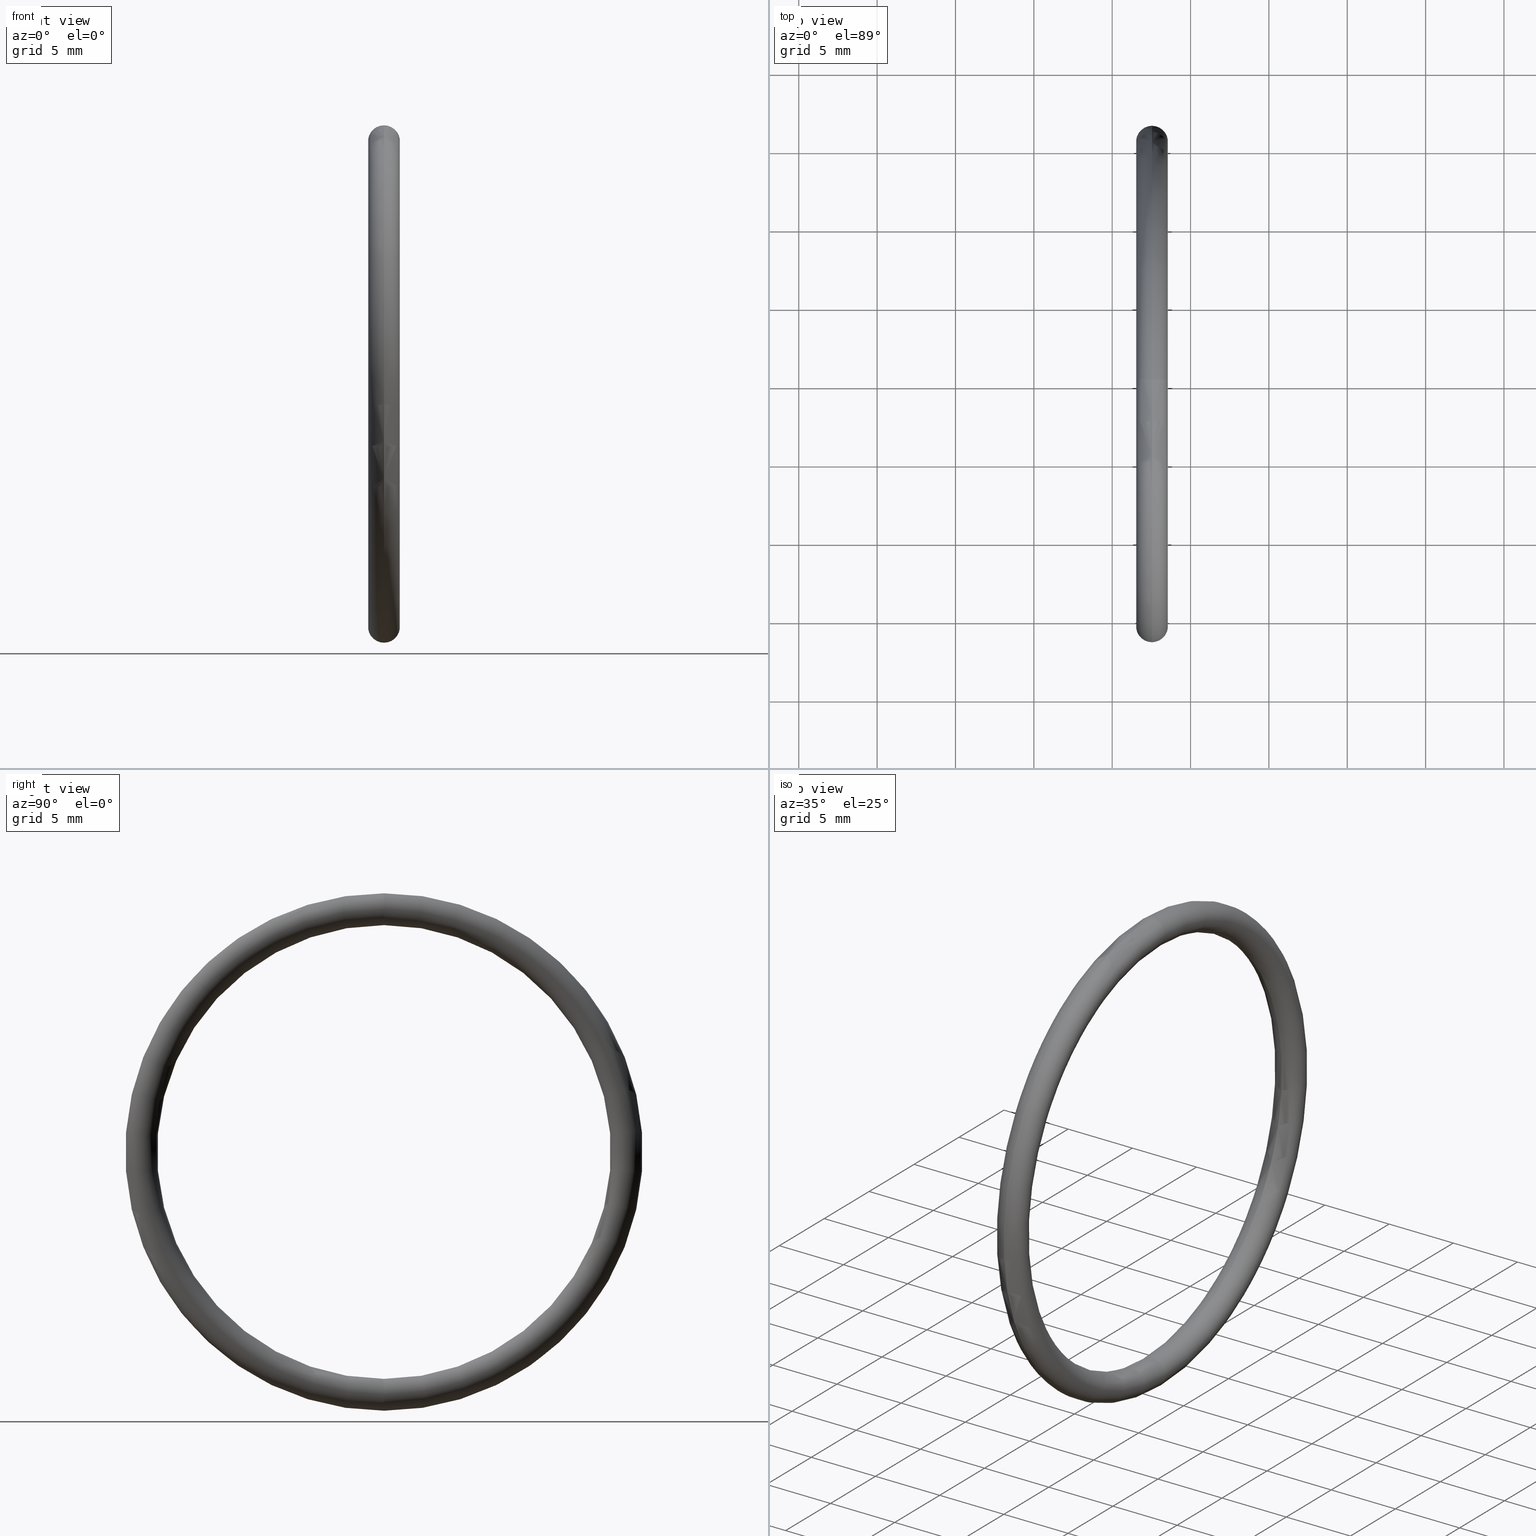
[diagram: canonical four-view strip — front | top / right | iso, engineering-drawing reading convention]
A machine part, canonical four-view strip (front | top / right | iso — engineering-drawing reading convention). The complete STEP part file that produces these views, byte-faithful:
ISO-10303-21;
HEADER;
FILE_DESCRIPTION (( 'STEP AP203' ),
    '1' );
FILE_NAME ('OM-32-BN.STEP',
    '2008-03-29T07:57:19',
    ( 'Baystate-05' ),
    ( 'BayState InfoTech' ),
    'SwSTEP 2.0',
    'SolidWorks 2007',
    '' );
FILE_SCHEMA (( 'CONFIG_CONTROL_DESIGN' ));
ENDSEC;

DATA;
#1 = CC_DESIGN_APPROVAL ( #9, ( #12 ) ) ;
#2 = APPROVAL_DATE_TIME ( #3, #9 ) ;
#3 = DATE_AND_TIME ( #4, #5 ) ;
#4 = CALENDAR_DATE ( 2008, 29, 3 ) ;
#5 = LOCAL_TIME ( 13, 27, 19.00000000000000000, #6 ) ;
#6 = COORDINATED_UNIVERSAL_TIME_OFFSET ( 5, 30, .AHEAD. ) ;
#7 = APPROVAL_PERSON_ORGANIZATION ( #11, #9, #8 ) ;
#8 = APPROVAL_ROLE ( '' ) ;
#9 = APPROVAL ( #10, 'UNSPECIFIED' ) ;
#10 = APPROVAL_STATUS ( 'not_yet_approved' ) ;
#11 = PERSON_AND_ORGANIZATION ( #20, #19 ) ;
#12 = PRODUCT_DEFINITION ( 'UNKNOWN', '', #69, #13 ) ;
#13 = DESIGN_CONTEXT ( 'detailed design', #15, 'design' ) ;
#14 = APPLICATION_PROTOCOL_DEFINITION ( 'international standard', 'config_control_design', 1994, #15 ) ;
#15 = APPLICATION_CONTEXT ( 'configuration controlled 3d designs of mechanical parts and assemblies' ) ;
#16 = CC_DESIGN_PERSON_AND_ORGANIZATION_ASSIGNMENT ( #18, #17, ( #21 ) ) ;
#17 = PERSON_AND_ORGANIZATION_ROLE ( 'design_owner' ) ;
#18 = PERSON_AND_ORGANIZATION ( #20, #19 ) ;
#19 = ORGANIZATION ( 'UNSPECIFIED', 'UNSPECIFIED', '' ) ;
#20 = PERSON ( 'UNSPECIFIED', 'UNSPECIFIED', 'UNSPECIFIED', ('UNSPECIFIED'), ('UNSPECIFIED'), ('UNSPECIFIED') ) ;
#21 = PRODUCT ( 'OM-32-BN', 'OM-32-BN', '', ( #22 ) ) ;
#22 = MECHANICAL_CONTEXT ( 'NONE', #24, 'mechanical' ) ;
#23 = APPLICATION_PROTOCOL_DEFINITION ( 'international standard', 'config_control_design', 1994, #24 ) ;
#24 = APPLICATION_CONTEXT ( 'configuration controlled 3d designs of mechanical parts and assemblies' ) ;
#25 = TOROIDAL_SURFACE ( 'NONE', #86, 0.6099999999999998800, 0.04000000000000000100 ) ;
#26 = DIRECTION ( 'NONE',  ( 1.000000000000000000, 0.0000000000000000000, 0.0000000000000000000 ) ) ;
#27 = CARTESIAN_POINT ( 'NONE',  ( 0.0000000000000000000, 0.0000000000000000000, 0.0000000000000000000 ) ) ;
#28 = AXIS2_PLACEMENT_3D ( 'NONE', #27, #104, #26 ) ;
#29 = SHAPE_DEFINITION_REPRESENTATION ( #79, #30 ) ;
#30 = ADVANCED_BREP_SHAPE_REPRESENTATION ( 'OM-32-BN', ( #149, #28 ), #31 ) ;
#31 =( GEOMETRIC_REPRESENTATION_CONTEXT ( 3 ) GLOBAL_UNCERTAINTY_ASSIGNED_CONTEXT ( ( #32 ) ) GLOBAL_UNIT_ASSIGNED_CONTEXT ( ( #100, #99, #33 ) ) REPRESENTATION_CONTEXT ( 'NONE', 'WORKASPACE' ) );
#32 = UNCERTAINTY_MEASURE_WITH_UNIT (LENGTH_MEASURE( 1.000000000000000100E-005 ), #100, 'distance_accuracy_value', 'NONE');
#33 =( NAMED_UNIT ( * ) SI_UNIT ( $, .STERADIAN. ) SOLID_ANGLE_UNIT ( ) );
#34 = LOCAL_TIME ( 13, 27, 19.00000000000000000, #35 ) ;
#35 = COORDINATED_UNIVERSAL_TIME_OFFSET ( 5, 30, .AHEAD. ) ;
#36 = APPROVAL_PERSON_ORGANIZATION ( #40, #38, #37 ) ;
#37 = APPROVAL_ROLE ( '' ) ;
#38 = APPROVAL ( #39, 'UNSPECIFIED' ) ;
#39 = APPROVAL_STATUS ( 'not_yet_approved' ) ;
#40 = PERSON_AND_ORGANIZATION ( #20, #19 ) ;
#41 = CC_DESIGN_DATE_AND_TIME_ASSIGNMENT ( #43, #42, ( #50 ) ) ;
#42 = DATE_TIME_ROLE ( 'classification_date' ) ;
#43 = DATE_AND_TIME ( #44, #45 ) ;
#44 = CALENDAR_DATE ( 2008, 29, 3 ) ;
#45 = LOCAL_TIME ( 13, 27, 19.00000000000000000, #46 ) ;
#46 = COORDINATED_UNIVERSAL_TIME_OFFSET ( 5, 30, .AHEAD. ) ;
#47 = CC_DESIGN_PERSON_AND_ORGANIZATION_ASSIGNMENT ( #49, #48, ( #50 ) ) ;
#48 = PERSON_AND_ORGANIZATION_ROLE ( 'classification_officer' ) ;
#49 = PERSON_AND_ORGANIZATION ( #20, #19 ) ;
#50 = SECURITY_CLASSIFICATION ( '', '', #51 ) ;
#51 = SECURITY_CLASSIFICATION_LEVEL ( 'unclassified' ) ;
#52 = CC_DESIGN_PERSON_AND_ORGANIZATION_ASSIGNMENT ( #54, #53, ( #69 ) ) ;
#53 = PERSON_AND_ORGANIZATION_ROLE ( 'design_supplier' ) ;
#54 = PERSON_AND_ORGANIZATION ( #20, #19 ) ;
#55 = CC_DESIGN_PERSON_AND_ORGANIZATION_ASSIGNMENT ( #57, #56, ( #69 ) ) ;
#56 = PERSON_AND_ORGANIZATION_ROLE ( 'creator' ) ;
#57 = PERSON_AND_ORGANIZATION ( #20, #19 ) ;
#58 = CC_DESIGN_APPROVAL ( #66, ( #69 ) ) ;
#59 = APPROVAL_DATE_TIME ( #60, #66 ) ;
#60 = DATE_AND_TIME ( #61, #62 ) ;
#61 = CALENDAR_DATE ( 2008, 29, 3 ) ;
#62 = LOCAL_TIME ( 13, 27, 19.00000000000000000, #63 ) ;
#63 = COORDINATED_UNIVERSAL_TIME_OFFSET ( 5, 30, .AHEAD. ) ;
#64 = APPROVAL_PERSON_ORGANIZATION ( #68, #66, #65 ) ;
#65 = APPROVAL_ROLE ( '' ) ;
#66 = APPROVAL ( #67, 'UNSPECIFIED' ) ;
#67 = APPROVAL_STATUS ( 'not_yet_approved' ) ;
#68 = PERSON_AND_ORGANIZATION ( #20, #19 ) ;
#69 = PRODUCT_DEFINITION_FORMATION_WITH_SPECIFIED_SOURCE ( 'ANY', '', #21, .NOT_KNOWN. ) ;
#70 = CC_DESIGN_DATE_AND_TIME_ASSIGNMENT ( #72, #71, ( #12 ) ) ;
#71 = DATE_TIME_ROLE ( 'creation_date' ) ;
#72 = DATE_AND_TIME ( #73, #74 ) ;
#73 = CALENDAR_DATE ( 2008, 29, 3 ) ;
#74 = LOCAL_TIME ( 13, 27, 19.00000000000000000, #75 ) ;
#75 = COORDINATED_UNIVERSAL_TIME_OFFSET ( 5, 30, .AHEAD. ) ;
#76 = CC_DESIGN_PERSON_AND_ORGANIZATION_ASSIGNMENT ( #78, #77, ( #12 ) ) ;
#77 = PERSON_AND_ORGANIZATION_ROLE ( 'creator' ) ;
#78 = PERSON_AND_ORGANIZATION ( #20, #19 ) ;
#79 = PRODUCT_DEFINITION_SHAPE ( 'NONE', 'NONE',  #12 ) ;
#80 = PRODUCT_RELATED_PRODUCT_CATEGORY ( 'detail', '', ( #21 ) ) ;
#81 = CC_DESIGN_SECURITY_CLASSIFICATION ( #50, ( #69 ) ) ;
#82 = CC_DESIGN_APPROVAL ( #38, ( #50 ) ) ;
#83 = APPROVAL_DATE_TIME ( #84, #38 ) ;
#84 = DATE_AND_TIME ( #85, #34 ) ;
#85 = CALENDAR_DATE ( 2008, 29, 3 ) ;
#86 = AXIS2_PLACEMENT_3D ( 'NONE', #94, #93, #92 ) ;
#87 = DIRECTION ( 'NONE',  ( 0.0000000000000000000, 0.0000000000000000000, -1.000000000000000000 ) ) ;
#88 = DIRECTION ( 'NONE',  ( 0.0000000000000000000, -1.000000000000000000, 0.0000000000000000000 ) ) ;
#89 = CARTESIAN_POINT ( 'NONE',  ( 0.1000000000000000700, 7.470345474798854000E-017, -0.6099999999999998800 ) ) ;
#90 = AXIS2_PLACEMENT_3D ( 'NONE', #89, #125, #124 ) ;
#91 = CIRCLE ( 'NONE', #90, 0.03999999999999998000 ) ;
#92 = DIRECTION ( 'NONE',  ( 0.0000000000000000000, 0.0000000000000000000, 1.000000000000000000 ) ) ;
#93 = DIRECTION ( 'NONE',  ( -1.000000000000000000, 0.0000000000000000000, 0.0000000000000000000 ) ) ;
#94 = CARTESIAN_POINT ( 'NONE',  ( 0.1000000000000000700, 0.0000000000000000000, 0.0000000000000000000 ) ) ;
#95 = CIRCLE ( 'NONE', #97, 0.03999999999999998000 ) ;
#96 = CARTESIAN_POINT ( 'NONE',  ( 0.1000000000000000700, 0.0000000000000000000, 0.6099999999999998800 ) ) ;
#97 = AXIS2_PLACEMENT_3D ( 'NONE', #96, #88, #87 ) ;
#98 = FACE_OUTER_BOUND ( 'NONE', #151, .T. ) ;
#99 =( NAMED_UNIT ( * ) PLANE_ANGLE_UNIT ( ) SI_UNIT ( $, .RADIAN. ) );
#100 =( CONVERSION_BASED_UNIT ( 'INCH', #101 ) LENGTH_UNIT ( ) NAMED_UNIT ( #102 ) );
#101 = LENGTH_MEASURE_WITH_UNIT ( LENGTH_MEASURE( 0.02539999999999999900 ), #103 );
#102 = DIMENSIONAL_EXPONENTS ( 1.000000000000000000, 0.0000000000000000000, 0.0000000000000000000, 0.0000000000000000000, 0.0000000000000000000, 0.0000000000000000000, 0.0000000000000000000 ) ;
#103 =( LENGTH_UNIT ( ) NAMED_UNIT ( * ) SI_UNIT ( $, .METRE. ) );
#104 = DIRECTION ( 'NONE',  ( 0.0000000000000000000, 0.0000000000000000000, 1.000000000000000000 ) ) ;
#105 = DIRECTION ( 'NONE',  ( 0.0000000000000000000, 0.0000000000000000000, 1.000000000000000000 ) ) ;
#106 = DIRECTION ( 'NONE',  ( -1.000000000000000000, 0.0000000000000000000, 0.0000000000000000000 ) ) ;
#107 = CARTESIAN_POINT ( 'NONE',  ( 0.1000000000000000700, 0.0000000000000000000, 0.0000000000000000000 ) ) ;
#108 = AXIS2_PLACEMENT_3D ( 'NONE', #107, #106, #105 ) ;
#109 = CIRCLE ( 'NONE', #108, 0.5699999999999999500 ) ;
#110 = CARTESIAN_POINT ( 'NONE',  ( 0.1000000000000000700, 0.0000000000000000000, 0.5699999999999999500 ) ) ;
#111 = DIRECTION ( 'NONE',  ( 0.0000000000000000000, 0.0000000000000000000, -1.000000000000000000 ) ) ;
#112 = DIRECTION ( 'NONE',  ( 0.0000000000000000000, -1.000000000000000000, 0.0000000000000000000 ) ) ;
#113 = CARTESIAN_POINT ( 'NONE',  ( 0.1000000000000000700, 0.0000000000000000000, 0.6099999999999998800 ) ) ;
#114 = AXIS2_PLACEMENT_3D ( 'NONE', #113, #112, #111 ) ;
#115 = CIRCLE ( 'NONE', #114, 0.03999999999999998000 ) ;
#116 = CARTESIAN_POINT ( 'NONE',  ( 0.1000000000000000700, 0.0000000000000000000, 0.6499999999999999100 ) ) ;
#117 = DIRECTION ( 'NONE',  ( 0.0000000000000000000, 0.0000000000000000000, 1.000000000000000000 ) ) ;
#118 = DIRECTION ( 'NONE',  ( -1.000000000000000000, 0.0000000000000000000, 0.0000000000000000000 ) ) ;
#119 = CARTESIAN_POINT ( 'NONE',  ( 0.1000000000000000700, 0.0000000000000000000, 0.0000000000000000000 ) ) ;
#120 = AXIS2_PLACEMENT_3D ( 'NONE', #119, #118, #117 ) ;
#121 = CIRCLE ( 'NONE', #120, 0.6499999999999999100 ) ;
#122 = CARTESIAN_POINT ( 'NONE',  ( 0.1000000000000000700, 6.980486755139912600E-017, -0.5699999999999999500 ) ) ;
#123 = CARTESIAN_POINT ( 'NONE',  ( 0.1000000000000000700, 7.960204194457794200E-017, -0.6499999999999999100 ) ) ;
#124 = DIRECTION ( 'NONE',  ( 0.0000000000000000000, -1.224646799147354900E-016, 1.000000000000000000 ) ) ;
#125 = DIRECTION ( 'NONE',  ( 0.0000000000000000000, 1.000000000000000000, 1.224646799147353200E-016 ) ) ;
#126 = ORIENTED_EDGE ( 'NONE', *, *, #143, .T. ) ;
#127 = ORIENTED_EDGE ( 'NONE', *, *, #128, .T. ) ;
#128 = EDGE_CURVE ( 'NONE', #155, #154, #190, .T. ) ;
#129 = ADVANCED_FACE ( 'NONE', ( #185 ), #184, .T. ) ;
#130 = EDGE_LOOP ( 'NONE', ( #131, #132, #133, #134 ) ) ;
#131 = ORIENTED_EDGE ( 'NONE', *, *, #157, .F. ) ;
#132 = ORIENTED_EDGE ( 'NONE', *, *, #128, .F. ) ;
#133 = ORIENTED_EDGE ( 'NONE', *, *, #196, .T. ) ;
#134 = ORIENTED_EDGE ( 'NONE', *, *, #148, .T. ) ;
#135 = CLOSED_SHELL ( 'NONE', ( #150, #136, #144, #129 ) ) ;
#136 = ADVANCED_FACE ( 'NONE', ( #179 ), #178, .T. ) ;
#137 = EDGE_LOOP ( 'NONE', ( #138, #139, #141, #142 ) ) ;
#138 = ORIENTED_EDGE ( 'NONE', *, *, #193, .F. ) ;
#139 = ORIENTED_EDGE ( 'NONE', *, *, #140, .T. ) ;
#140 = EDGE_CURVE ( 'NONE', #191, #154, #173, .T. ) ;
#141 = ORIENTED_EDGE ( 'NONE', *, *, #153, .T. ) ;
#142 = ORIENTED_EDGE ( 'NONE', *, *, #143, .F. ) ;
#143 = EDGE_CURVE ( 'NONE', #194, #155, #168, .T. ) ;
#144 = ADVANCED_FACE ( 'NONE', ( #163 ), #162, .T. ) ;
#145 = EDGE_LOOP ( 'NONE', ( #146, #147, #126, #127 ) ) ;
#146 = ORIENTED_EDGE ( 'NONE', *, *, #140, .F. ) ;
#147 = ORIENTED_EDGE ( 'NONE', *, *, #148, .F. ) ;
#148 = EDGE_CURVE ( 'NONE', #194, #191, #95, .T. ) ;
#149 = MANIFOLD_SOLID_BREP ( 'NONE', #135 ) ;
#150 = ADVANCED_FACE ( 'NONE', ( #98 ), #25, .T. ) ;
#151 = EDGE_LOOP ( 'NONE', ( #152, #156, #192, #195 ) ) ;
#152 = ORIENTED_EDGE ( 'NONE', *, *, #153, .F. ) ;
#153 = EDGE_CURVE ( 'NONE', #154, #155, #91, .T. ) ;
#154 = VERTEX_POINT ( 'NONE', #123 ) ;
#155 = VERTEX_POINT ( 'NONE', #122 ) ;
#156 = ORIENTED_EDGE ( 'NONE', *, *, #157, .T. ) ;
#157 = EDGE_CURVE ( 'NONE', #154, #191, #121, .T. ) ;
#158 = DIRECTION ( 'NONE',  ( 0.0000000000000000000, 0.0000000000000000000, 1.000000000000000000 ) ) ;
#159 = DIRECTION ( 'NONE',  ( -1.000000000000000000, 0.0000000000000000000, 0.0000000000000000000 ) ) ;
#160 = CARTESIAN_POINT ( 'NONE',  ( 0.1000000000000000700, 0.0000000000000000000, 0.0000000000000000000 ) ) ;
#161 = AXIS2_PLACEMENT_3D ( 'NONE', #160, #159, #158 ) ;
#162 = TOROIDAL_SURFACE ( 'NONE', #161, 0.6099999999999998800, 0.04000000000000000100 ) ;
#163 = FACE_OUTER_BOUND ( 'NONE', #145, .T. ) ;
#164 = DIRECTION ( 'NONE',  ( 0.0000000000000000000, 0.0000000000000000000, 1.000000000000000000 ) ) ;
#165 = DIRECTION ( 'NONE',  ( -1.000000000000000000, 0.0000000000000000000, 0.0000000000000000000 ) ) ;
#166 = CARTESIAN_POINT ( 'NONE',  ( 0.1000000000000000700, 0.0000000000000000000, 0.0000000000000000000 ) ) ;
#167 = AXIS2_PLACEMENT_3D ( 'NONE', #166, #165, #164 ) ;
#168 = CIRCLE ( 'NONE', #167, 0.5699999999999999500 ) ;
#169 = DIRECTION ( 'NONE',  ( 0.0000000000000000000, 0.0000000000000000000, 1.000000000000000000 ) ) ;
#170 = DIRECTION ( 'NONE',  ( -1.000000000000000000, 0.0000000000000000000, 0.0000000000000000000 ) ) ;
#171 = CARTESIAN_POINT ( 'NONE',  ( 0.1000000000000000700, 0.0000000000000000000, 0.0000000000000000000 ) ) ;
#172 = AXIS2_PLACEMENT_3D ( 'NONE', #171, #170, #169 ) ;
#173 = CIRCLE ( 'NONE', #172, 0.6499999999999999100 ) ;
#174 = DIRECTION ( 'NONE',  ( 0.0000000000000000000, 0.0000000000000000000, 1.000000000000000000 ) ) ;
#175 = DIRECTION ( 'NONE',  ( -1.000000000000000000, 0.0000000000000000000, 0.0000000000000000000 ) ) ;
#176 = CARTESIAN_POINT ( 'NONE',  ( 0.1000000000000000700, 0.0000000000000000000, 0.0000000000000000000 ) ) ;
#177 = AXIS2_PLACEMENT_3D ( 'NONE', #176, #175, #174 ) ;
#178 = TOROIDAL_SURFACE ( 'NONE', #177, 0.6099999999999998800, 0.04000000000000000100 ) ;
#179 = FACE_OUTER_BOUND ( 'NONE', #137, .T. ) ;
#180 = DIRECTION ( 'NONE',  ( 0.0000000000000000000, 0.0000000000000000000, 1.000000000000000000 ) ) ;
#181 = DIRECTION ( 'NONE',  ( -1.000000000000000000, 0.0000000000000000000, 0.0000000000000000000 ) ) ;
#182 = CARTESIAN_POINT ( 'NONE',  ( 0.1000000000000000700, 0.0000000000000000000, 0.0000000000000000000 ) ) ;
#183 = AXIS2_PLACEMENT_3D ( 'NONE', #182, #181, #180 ) ;
#184 = TOROIDAL_SURFACE ( 'NONE', #183, 0.6099999999999998800, 0.04000000000000000100 ) ;
#185 = FACE_OUTER_BOUND ( 'NONE', #130, .T. ) ;
#186 = DIRECTION ( 'NONE',  ( 0.0000000000000000000, -1.224646799147354900E-016, 1.000000000000000000 ) ) ;
#187 = DIRECTION ( 'NONE',  ( 0.0000000000000000000, 1.000000000000000000, 1.224646799147353200E-016 ) ) ;
#188 = CARTESIAN_POINT ( 'NONE',  ( 0.1000000000000000700, 7.470345474798854000E-017, -0.6099999999999998800 ) ) ;
#189 = AXIS2_PLACEMENT_3D ( 'NONE', #188, #187, #186 ) ;
#190 = CIRCLE ( 'NONE', #189, 0.03999999999999998000 ) ;
#191 = VERTEX_POINT ( 'NONE', #116 ) ;
#192 = ORIENTED_EDGE ( 'NONE', *, *, #193, .T. ) ;
#193 = EDGE_CURVE ( 'NONE', #191, #194, #115, .T. ) ;
#194 = VERTEX_POINT ( 'NONE', #110 ) ;
#195 = ORIENTED_EDGE ( 'NONE', *, *, #196, .F. ) ;
#196 = EDGE_CURVE ( 'NONE', #155, #194, #109, .T. ) ;
ENDSEC;
END-ISO-10303-21;
